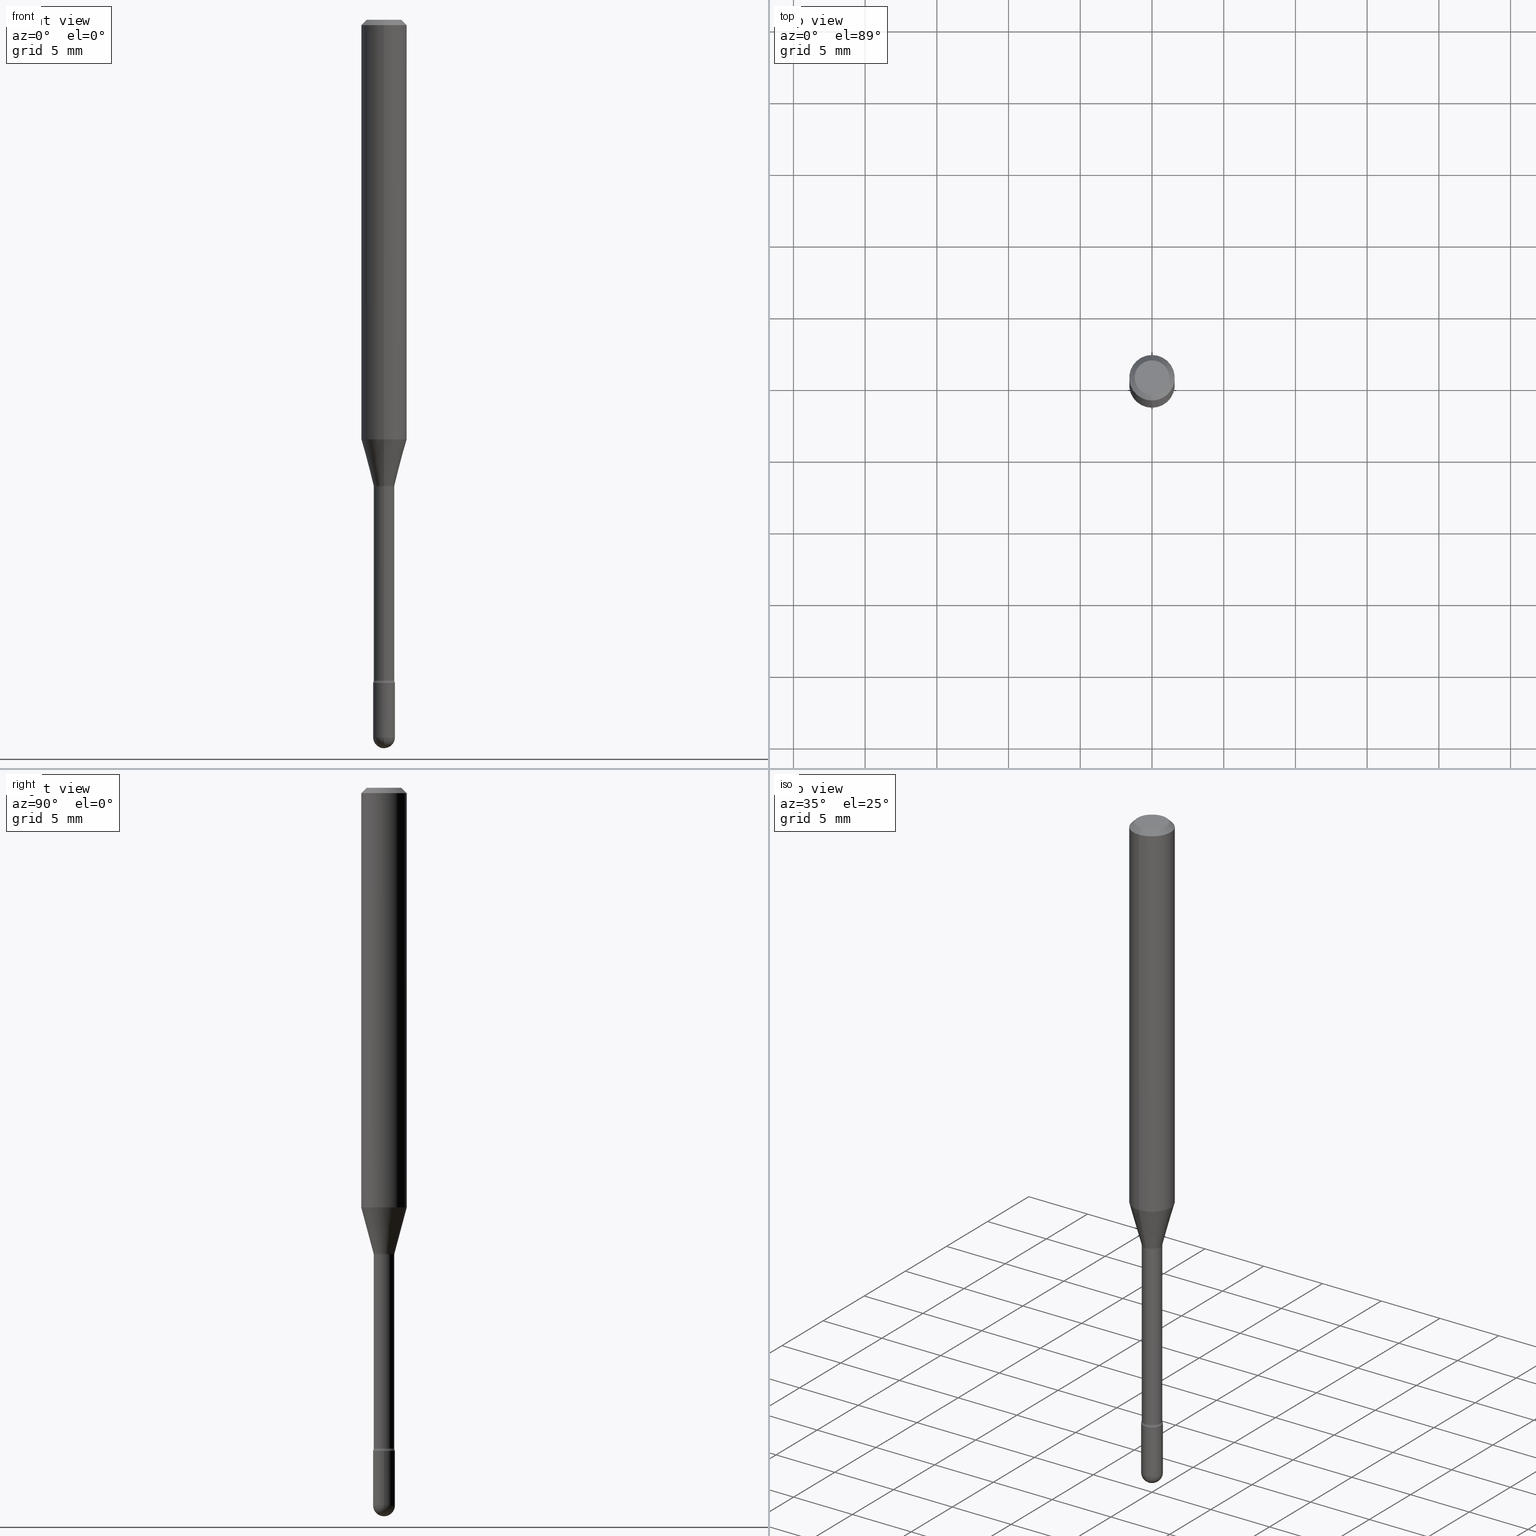
[diagram: canonical four-view strip — front | top / right | iso, engineering-drawing reading convention]
A machine part, canonical four-view strip (front | top / right | iso — engineering-drawing reading convention). The complete STEP part file that produces these views, byte-faithful:
ISO-10303-21;
HEADER;
FILE_DESCRIPTION (( 'STEP AP203' ),
    '1' );
FILE_NAME ('09808.STEP',
    '2024-04-10T01:38:13',
    ( '' ),
    ( '' ),
    'SwSTEP 2.0',
    'SolidWorks 2023',
    '' );
FILE_SCHEMA (( 'CONFIG_CONTROL_DESIGN' ));
ENDSEC;

DATA;
#1 = CARTESIAN_POINT ( 'NONE',  ( 3.135034256574997067E-29, -4.475984025182689019E-15, -1.281974787463810994 ) ) ;
#2 = DIRECTION ( 'NONE',  ( -6.982962677686266711E-15, -1.000000000000000000, 0.000000000000000000 ) ) ;
#3 = ADVANCED_FACE ( 'NONE', ( #61 ), #437, .T. ) ;
#4 = EDGE_CURVE ( 'NONE', #338, #497, #53, .T. ) ;
#5 = CIRCLE ( 'NONE', #69, 0.06250000000000000000 ) ;
#6 = EDGE_LOOP ( 'NONE', ( #266, #74, #245, #470, #261 ) ) ;
#7 = CIRCLE ( 'NONE', #134, 0.03000000000000000583 ) ;
#8 = APPLICATION_CONTEXT ( 'configuration controlled 3d designs of mechanical parts and assemblies' ) ;
#9 = DIRECTION ( 'NONE',  ( -2.445472631156169936E-29, 3.491475861266922095E-15, 1.000000000000000000 ) ) ;
#10 = UNCERTAINTY_MEASURE_WITH_UNIT (LENGTH_MEASURE( 1.000000000000000082E-05 ), #332, 'distance_accuracy_value', 'NONE');
#11 = DIRECTION ( 'NONE',  ( -6.982962677686265922E-15, -1.000000000000000000, 0.000000000000000000 ) ) ;
#12 = ORIENTED_EDGE ( 'NONE', *, *, #106, .T. ) ;
#13 = SPHERICAL_SURFACE ( 'NONE', #218, 0.02999999999999997807 ) ;
#14 = PERSON_AND_ORGANIZATION_ROLE ( 'classification_officer' ) ;
#15 = EDGE_CURVE ( 'NONE', #220, #75, #559, .T. ) ;
#16 = DIRECTION ( 'NONE',  ( -6.982962677686265922E-15, -1.000000000000000000, 4.370956789862821150E-15 ) ) ;
#17 = DATE_TIME_ROLE ( 'classification_date' ) ;
#18 = AXIS2_PLACEMENT_3D ( 'NONE', #376, #284, #240 ) ;
#19 = AXIS2_PLACEMENT_3D ( 'NONE', #215, #257, #467 ) ;
#20 = DIRECTION ( 'NONE',  ( -6.982962677686265133E-15, -1.000000000000000000, 0.000000000000000000 ) ) ;
#21 = DIRECTION ( 'NONE',  ( -1.000000000000000000, 7.105427357601001070E-15, -4.926315508542082329E-29 ) ) ;
#22 = DIRECTION ( 'NONE',  ( -4.851104656540964275E-15, -0.7071067811865500152, -0.7071067811865450192 ) ) ;
#23 = CARTESIAN_POINT ( 'NONE',  ( 2.003730514843928186E-16, 0.02819999999999552032, -1.281974787463810994 ) ) ;
#24 = CARTESIAN_POINT ( 'NONE',  ( -1.169113584055446105E-44, 1.669184350826100908E-30, 4.780733988912460139E-16 ) ) ;
#25 = AXIS2_PLACEMENT_3D ( 'NONE', #182, #273, #16 ) ;
#26 = APPROVAL_PERSON_ORGANIZATION ( #272, #490, #51 ) ;
#27 = DIRECTION ( 'NONE',  ( -2.445472631156169936E-29, 3.491475861266922095E-15, 1.000000000000000000 ) ) ;
#28 = ORIENTED_EDGE ( 'NONE', *, *, #4, .F. ) ;
#29 = ORIENTED_EDGE ( 'NONE', *, *, #167, .T. ) ;
#30 = DATE_TIME_ROLE ( 'creation_date' ) ;
#31 = ORIENTED_EDGE ( 'NONE', *, *, #291, .F. ) ;
#32 = DIRECTION ( 'NONE',  ( -2.445468806185136597E-29, 3.491481338843145583E-15, 1.000000000000000000 ) ) ;
#33 = AXIS2_PLACEMENT_3D ( 'NONE', #277, #447, #2 ) ;
#34 = ORIENTED_EDGE ( 'NONE', *, *, #564, .F. ) ;
#35 = APPROVAL_PERSON_ORGANIZATION ( #92, #483, #100 ) ;
#36 = DIRECTION ( 'NONE',  ( -2.445472631156169936E-29, 3.491475861266922095E-15, 1.000000000000000000 ) ) ;
#37 = ORIENTED_EDGE ( 'NONE', *, *, #278, .T. ) ;
#38 = FACE_OUTER_BOUND ( 'NONE', #377, .T. ) ;
#39 = MANIFOLD_SOLID_BREP ( 'Body-Move/Copy2[1]', #79 ) ;
#40 = ORIENTED_EDGE ( 'NONE', *, *, #106, .F. ) ;
#41 = PLANE ( 'NONE',  #133 ) ;
#42 = CIRCLE ( 'NONE', #121, 0.02820000000000009652 ) ;
#43 = CIRCLE ( 'NONE', #192, 0.04749999999999999362 ) ;
#44 = EDGE_LOOP ( 'NONE', ( #380, #439, #113, #360 ) ) ;
#45 = DIRECTION ( 'NONE',  ( -6.982962677686266711E-15, -1.000000000000000000, 3.491475861266922095E-15 ) ) ;
#46 = ORIENTED_EDGE ( 'NONE', *, *, #397, .T. ) ;
#47 = CARTESIAN_POINT ( 'NONE',  ( 4.450753227256948741E-29, -6.354496036694524637E-15, -1.820000000000000062 ) ) ;
#48 = EDGE_CURVE ( 'NONE', #81, #503, #524, .T. ) ;
#49 = EDGE_CURVE ( 'NONE', #486, #206, #357, .T. ) ;
#50 = DIRECTION ( 'NONE',  ( -6.982962677686265922E-15, -1.000000000000000000, 3.491475861266922489E-15 ) ) ;
#51 = APPROVAL_ROLE ( '' ) ;
#52 = CARTESIAN_POINT ( 'NONE',  ( 3.135029353058570194E-29, -4.475991047297303565E-15, -1.281974787463810994 ) ) ;
#53 = CIRCLE ( 'NONE', #18, 0.02999999999999999889 ) ;
#54 = VERTEX_POINT ( 'NONE', #163 ) ;
#55 = VECTOR ( 'NONE', #405, 39.37007874015748143 ) ;
#56 =( NAMED_UNIT ( * ) SI_UNIT ( $, .STERADIAN. ) SOLID_ANGLE_UNIT ( ) );
#57 = CARTESIAN_POINT ( 'NONE',  ( 0.000000000000000000, 0.000000000000000000, 0.000000000000000000 ) ) ;
#58 = COORDINATED_UNIVERSAL_TIME_OFFSET ( 5, 0, .BEHIND. ) ;
#59 = DIRECTION ( 'NONE',  ( -2.445472631156169936E-29, 3.491475861266922489E-15, 1.000000000000000000 ) ) ;
#60 = DIRECTION ( 'NONE',  ( -2.438088387897960049E-29, 3.491481338843145188E-15, 1.000000000000000000 ) ) ;
#61 = FACE_OUTER_BOUND ( 'NONE', #504, .T. ) ;
#62 = AXIS2_PLACEMENT_3D ( 'NONE', #52, #9, #45 ) ;
#63 = ADVANCED_FACE ( 'NONE', ( #297 ), #476, .T. ) ;
#64 = AXIS2_PLACEMENT_3D ( 'NONE', #359, #489, #11 ) ;
#65 = CIRCLE ( 'NONE', #288, 0.02819999999999999590 ) ;
#66 = APPLICATION_CONTEXT ( 'configuration controlled 3d designs of mechanical parts and assemblies' ) ;
#67 = DIRECTION ( 'NONE',  ( -2.445472631156169936E-29, 3.491475861266922095E-15, 1.000000000000000000 ) ) ;
#68 = FACE_OUTER_BOUND ( 'NONE', #442, .T. ) ;
#69 = AXIS2_PLACEMENT_3D ( 'NONE', #346, #472, #562 ) ;
#70 = ORIENTED_EDGE ( 'NONE', *, *, #401, .F. ) ;
#71 = CARTESIAN_POINT ( 'NONE',  ( 3.069544618484080644E-16, 0.04319999999999374340, -1.812875394747777813 ) ) ;
#72 = ORIENTED_EDGE ( 'NONE', *, *, #452, .F. ) ;
#73 = ADVANCED_FACE ( 'NONE', ( #424 ), #328, .F. ) ;
#74 = ORIENTED_EDGE ( 'NONE', *, *, #540, .T. ) ;
#75 = VERTEX_POINT ( 'NONE', #23 ) ;
#76 = CARTESIAN_POINT ( 'NONE',  ( -4.364351673553916201E-16, -0.06250000000000000000, 6.962906402204286449E-16 ) ) ;
#77 = DIRECTION ( 'NONE',  ( 6.982962677686265922E-15, 1.000000000000000000, -3.491475861266922489E-15 ) ) ;
#78 = CC_DESIGN_DATE_AND_TIME_ASSIGNMENT ( #493, #17, ( #105 ) ) ;
#79 = CLOSED_SHELL ( 'NONE', ( #260, #519, #179, #330, #63 ) ) ;
#80 = AXIS2_PLACEMENT_3D ( 'NONE', #505, #388, #294 ) ;
#81 = VERTEX_POINT ( 'NONE', #198 ) ;
#82 = EDGE_CURVE ( 'NONE', #548, #406, #336, .T. ) ;
#83 = EDGE_CURVE ( 'NONE', #220, #210, #166, .T. ) ;
#84 = ORIENTED_EDGE ( 'NONE', *, *, #397, .F. ) ;
#85 = DIRECTION ( 'NONE',  ( -2.445468806185136597E-29, 3.491481338843145583E-15, 1.000000000000000000 ) ) ;
#86 = ORIENTED_EDGE ( 'NONE', *, *, #452, .T. ) ;
#87 = AXIS2_PLACEMENT_3D ( 'NONE', #518, #563, #337 ) ;
#88 = ORIENTED_EDGE ( 'NONE', *, *, #82, .T. ) ;
#89 = LINE ( 'NONE', #136, #309 ) ;
#90 = APPROVAL_DATE_TIME ( #314, #319 ) ;
#91 = DIRECTION ( 'NONE',  ( -6.982962677686263555E-15, -1.000000000000000000, 0.000000000000000000 ) ) ;
#92 = PERSON_AND_ORGANIZATION ( #544, #301 ) ;
#93 = CARTESIAN_POINT ( 'NONE',  ( -1.969195475107530228E-16, -0.02820000000000004794, 5.765330181789734406E-16 ) ) ;
#94 = TOROIDAL_SURFACE ( 'NONE', #62, 0.04319999999999998841, 0.01500000000000001506 ) ;
#95 = DIMENSIONAL_EXPONENTS ( 1.000000000000000000, 0.000000000000000000, 0.000000000000000000, 0.000000000000000000, 0.000000000000000000, 0.000000000000000000, 0.000000000000000000 ) ;
#96 = AXIS2_PLACEMENT_3D ( 'NONE', #148, #500, #331 ) ;
#97 = DIRECTION ( 'NONE',  ( -2.445472631156169936E-29, 3.491475861266922489E-15, 1.000000000000000000 ) ) ;
#98 = ADVANCED_FACE ( 'NONE', ( #343 ), #122, .T. ) ;
#99 = CARTESIAN_POINT ( 'NONE',  ( 2.023580671322488949E-45, -2.889075548149930338E-31, -8.274729225641604290E-17 ) ) ;
#100 = APPROVAL_ROLE ( '' ) ;
#101 = CARTESIAN_POINT ( 'NONE',  ( 4.433330227356255357E-29, -6.329620610409766284E-15, -1.812875394747777591 ) ) ;
#102 = LINE ( 'NONE', #280, #444 ) ;
#103 = EDGE_CURVE ( 'NONE', #406, #548, #5, .T. ) ;
#104 = AXIS2_PLACEMENT_3D ( 'NONE', #371, #541, #131 ) ;
#105 = SECURITY_CLASSIFICATION ( '', '', #440 ) ;
#106 = EDGE_CURVE ( 'NONE', #468, #176, #42, .T. ) ;
#107 = FACE_OUTER_BOUND ( 'NONE', #211, .T. ) ;
#108 = DIRECTION ( 'NONE',  ( 1.000000000000000000, -7.105427357601001070E-15, 4.926315441461120497E-29 ) ) ;
#109 = CARTESIAN_POINT ( 'NONE',  ( 2.817161623775705020E-29, -4.022147572369319801E-15, -1.151990657300387744 ) ) ;
#110 = ORIENTED_EDGE ( 'NONE', *, *, #49, .F. ) ;
#111 = PERSON_AND_ORGANIZATION ( #544, #301 ) ;
#112 = ADVANCED_FACE ( 'NONE', ( #292 ), #164, .T. ) ;
#113 = ORIENTED_EDGE ( 'NONE', *, *, #128, .T. ) ;
#114 = CIRCLE ( 'NONE', #132, 0.02819999999999999590 ) ;
#115 = CONICAL_SURFACE ( 'NONE', #87, 0.06250000000000000000, 0.7853981633974483900 ) ;
#116 = ORIENTED_EDGE ( 'NONE', *, *, #540, .F. ) ;
#117 = CARTESIAN_POINT ( 'NONE',  ( 4.817573548184719118E-29, -6.878218237520997007E-15, -1.969999999999999973 ) ) ;
#118 = ORIENTED_EDGE ( 'NONE', *, *, #474, .F. ) ;
#119 = DIRECTION ( 'NONE',  ( -6.982962677686265922E-15, -1.000000000000000000, 3.491475861266921306E-15 ) ) ;
#120 = CARTESIAN_POINT ( 'NONE',  ( -0.03000000000000000583, 2.131628207280300972E-16, -1.475680527076471882E-30 ) ) ;
#121 = AXIS2_PLACEMENT_3D ( 'NONE', #214, #342, #394 ) ;
#122 = CYLINDRICAL_SURFACE ( 'NONE', #408, 0.06250000000000000000 ) ;
#123 = DESIGN_CONTEXT ( 'detailed design', #66, 'design' ) ;
#124 = AXIS2_PLACEMENT_3D ( 'NONE', #195, #404, #146 ) ;
#125 = DIRECTION ( 'NONE',  ( -2.445468806185136877E-29, 3.491481338843145188E-15, 1.000000000000000000 ) ) ;
#126 = CARTESIAN_POINT ( 'NONE',  ( 2.094888803306324684E-16, 0.02999999999999364286, -1.820000000000000062 ) ) ;
#127 = ORIENTED_EDGE ( 'NONE', *, *, #103, .T. ) ;
#128 = EDGE_CURVE ( 'NONE', #506, #548, #177, .T. ) ;
#129 = EDGE_LOOP ( 'NONE', ( #28, #557 ) ) ;
#130 = APPROVAL_STATUS ( 'not_yet_approved' ) ;
#131 = DIRECTION ( 'NONE',  ( -6.982962677686265922E-15, -1.000000000000000000, 3.483106191921935554E-15 ) ) ;
#132 = AXIS2_PLACEMENT_3D ( 'NONE', #1, #219, #181 ) ;
#133 = AXIS2_PLACEMENT_3D ( 'NONE', #339, #178, #77 ) ;
#134 = AXIS2_PLACEMENT_3D ( 'NONE', #152, #191, #496 ) ;
#135 = DIRECTION ( 'NONE',  ( -2.445472631156169375E-29, 3.491475861266922489E-15, 1.000000000000000000 ) ) ;
#136 = CARTESIAN_POINT ( 'NONE',  ( 0.03000000000000000583, -2.094888803305880457E-16, 1.462853032738781053E-30 ) ) ;
#137 =( LENGTH_UNIT ( ) NAMED_UNIT ( * ) SI_UNIT ( $, .METRE. ) );
#138 = COORDINATED_UNIVERSAL_TIME_OFFSET ( 5, 0, .BEHIND. ) ;
#139 = ORIENTED_EDGE ( 'NONE', *, *, #183, .F. ) ;
#140 = ADVANCED_FACE ( 'NONE', ( #482 ), #281, .F. ) ;
#141 = EDGE_CURVE ( 'NONE', #503, #513, #425, .T. ) ;
#142 = AXIS2_PLACEMENT_3D ( 'NONE', #311, #231, #435 ) ;
#143 = COORDINATED_UNIVERSAL_TIME_OFFSET ( 5, 0, .BEHIND. ) ;
#144 = CARTESIAN_POINT ( 'NONE',  ( -0.03000000000000000583, -6.403194316379730971E-15, -1.969999999999999973 ) ) ;
#145 = DATE_AND_TIME ( #536, #184 ) ;
#146 = DIRECTION ( 'NONE',  ( 1.000000000000000000, -6.982962677686266711E-15, 0.000000000000000000 ) ) ;
#147 = CC_DESIGN_PERSON_AND_ORGANIZATION_ASSIGNMENT ( #224, #316, ( #410 ) ) ;
#149 = EDGE_CURVE ( 'NONE', #176, #264, #315, .T. ) ;
#148 = CARTESIAN_POINT ( 'NONE',  ( 4.433330227356255357E-29, -6.329620610409766284E-15, -1.812875394747777591 ) ) ;
#150 = CALENDAR_DATE ( 2024, 9, 4 ) ;
#151 = DIRECTION ( 'NONE',  ( -6.982962677686266711E-15, -1.000000000000000000, 3.491475861266922095E-15 ) ) ;
#152 = CARTESIAN_POINT ( 'NONE',  ( 4.817573548184719118E-29, -6.878218237520997007E-15, -1.969999999999999973 ) ) ;
#153 = CIRCLE ( 'NONE', #25, 0.06250000000000000000 ) ;
#154 =( GEOMETRIC_REPRESENTATION_CONTEXT ( 3 ) GLOBAL_UNCERTAINTY_ASSIGNED_CONTEXT ( ( #10 ) ) GLOBAL_UNIT_ASSIGNED_CONTEXT ( ( #332, #156, #56 ) ) REPRESENTATION_CONTEXT ( 'NONE', 'WORKASPACE' ) );
#155 = EDGE_CURVE ( 'NONE', #506, #210, #153, .T. ) ;
#156 =( NAMED_UNIT ( * ) PLANE_ANGLE_UNIT ( ) SI_UNIT ( $, .RADIAN. ) );
#157 = ORIENTED_EDGE ( 'NONE', *, *, #363, .F. ) ;
#158 = VERTEX_POINT ( 'NONE', #223 ) ;
#159 = SPHERICAL_SURFACE ( 'NONE', #438, 0.02999999999999997807 ) ;
#160 = VECTOR ( 'NONE', #511, 39.37007874015748143 ) ;
#161 = AXIS2_PLACEMENT_3D ( 'NONE', #117, #32, #262 ) ;
#162 = EDGE_CURVE ( 'NONE', #54, #406, #308, .T. ) ;
#163 = CARTESIAN_POINT ( 'NONE',  ( 3.840629472727447874E-16, 0.04749999999999999362, -2.485923956665948360E-16 ) ) ;
#164 = CYLINDRICAL_SURFACE ( 'NONE', #393, 0.06250000000000000000 ) ;
#165 = FACE_OUTER_BOUND ( 'NONE', #246, .T. ) ;
#166 = LINE ( 'NONE', #556, #515 ) ;
#167 = EDGE_CURVE ( 'NONE', #176, #338, #237, .T. ) ;
#168 = ORIENTED_EDGE ( 'NONE', *, *, #82, .F. ) ;
#169 = FACE_OUTER_BOUND ( 'NONE', #383, .T. ) ;
#170 = APPLICATION_PROTOCOL_DEFINITION ( 'international standard', 'config_control_design', 1994, #66 ) ;
#171 = DIRECTION ( 'NONE',  ( 1.839019923739598738E-15, 0.2588190451025247363, 0.9659258262890673130 ) ) ;
#172 = ORIENTED_EDGE ( 'NONE', *, *, #167, .F. ) ;
#173 = DIRECTION ( 'NONE',  ( -6.982962677686265922E-15, -1.000000000000000000, 3.491475861266921306E-15 ) ) ;
#174 = AXIS2_PLACEMENT_3D ( 'NONE', #348, #520, #91 ) ;
#175 = CIRCLE ( 'NONE', #458, 0.02999999999999999889 ) ;
#176 = VERTEX_POINT ( 'NONE', #356 ) ;
#177 = LINE ( 'NONE', #76, #160 ) ;
#178 = DIRECTION ( 'NONE',  ( 2.445472631156169375E-29, -3.491475861266922489E-15, -1.000000000000000000 ) ) ;
#179 = ADVANCED_FACE ( 'NONE', ( #491 ), #443, .T. ) ;
#180 = ORIENTED_EDGE ( 'NONE', *, *, #15, .F. ) ;
#181 = DIRECTION ( 'NONE',  ( -6.982962677686265922E-15, -1.000000000000000000, 0.000000000000000000 ) ) ;
#182 = CARTESIAN_POINT ( 'NONE',  ( 2.817161623775705020E-29, -4.022147572369319801E-15, -1.151990657300387744 ) ) ;
#183 = EDGE_CURVE ( 'NONE', #468, #75, #527, .T. ) ;
#184 = LOCAL_TIME ( 21, 38, 13.00000000000000000, #143 ) ;
#185 = SHAPE_DEFINITION_REPRESENTATION ( #327, #317 ) ;
#186 = CARTESIAN_POINT ( 'NONE',  ( 4.364351673553919652E-16, 0.06249999999999995143, -0.01500000000000030129 ) ) ;
#187 = EDGE_CURVE ( 'NONE', #378, #506, #399, .T. ) ;
#188 = DIRECTION ( 'NONE',  ( -6.982962677686266711E-15, -1.000000000000000000, 3.491475861266922884E-15 ) ) ;
#189 = CARTESIAN_POINT ( 'NONE',  ( 4.440892098500625669E-16, 0.06250000000000000000, 2.598561575620634323E-16 ) ) ;
#190 = CARTESIAN_POINT ( 'NONE',  ( -0.02999999999999999889, -6.403194316379730971E-15, -1.820000000000000062 ) ) ;
#191 = DIRECTION ( 'NONE',  ( -2.445468806185136597E-29, 3.491481338843145583E-15, 1.000000000000000000 ) ) ;
#192 = AXIS2_PLACEMENT_3D ( 'NONE', #99, #27, #188 ) ;
#193 = DATE_AND_TIME ( #216, #466 ) ;
#194 = EDGE_CURVE ( 'NONE', #513, #486, #89, .T. ) ;
#195 = CARTESIAN_POINT ( 'NONE',  ( 4.817573548184719118E-29, -6.878218237520997007E-15, -1.969999999999999973 ) ) ;
#196 = CARTESIAN_POINT ( 'NONE',  ( 3.668208946734274889E-31, -5.237213791900411517E-17, -0.01500000000000008271 ) ) ;
#197 = APPROVAL_DATE_TIME ( #145, #490 ) ;
#198 = CARTESIAN_POINT ( 'NONE',  ( 4.892220361804041996E-29, -6.981125707487570201E-15, -2.000000000000000000 ) ) ;
#199 = CC_DESIGN_PERSON_AND_ORGANIZATION_ASSIGNMENT ( #279, #14, ( #105 ) ) ;
#200 = DIRECTION ( 'NONE',  ( -6.982962677686265922E-15, -1.000000000000000000, 3.491475861266924067E-15 ) ) ;
#201 = AXIS2_PLACEMENT_3D ( 'NONE', #411, #236, #419 ) ;
#202 = AXIS2_PLACEMENT_3D ( 'NONE', #296, #386, #391 ) ;
#203 = CARTESIAN_POINT ( 'NONE',  ( 4.817573548184719118E-29, -6.878218237520997007E-15, -1.969999999999999973 ) ) ;
#204 = ORIENTED_EDGE ( 'NONE', *, *, #83, .F. ) ;
#205 = ORIENTED_EDGE ( 'NONE', *, *, #128, .F. ) ;
#206 = VERTEX_POINT ( 'NONE', #190 ) ;
#207 = AXIS2_PLACEMENT_3D ( 'NONE', #126, #135, #50 ) ;
#208 = LOCAL_TIME ( 21, 38, 13.00000000000000000, #138 ) ;
#209 = CC_DESIGN_PERSON_AND_ORGANIZATION_ASSIGNMENT ( #238, #409, ( #488 ) ) ;
#210 = VERTEX_POINT ( 'NONE', #313 ) ;
#211 = EDGE_LOOP ( 'NONE', ( #379, #254, #84, #247 ) ) ;
#212 = DIRECTION ( 'NONE',  ( -2.445472631156169936E-29, 3.491475861266922095E-15, 1.000000000000000000 ) ) ;
#213 = EDGE_LOOP ( 'NONE', ( #180, #34, #37, #46 ) ) ;
#214 = CARTESIAN_POINT ( 'NONE',  ( 4.433337161552127439E-29, -6.329610680246607971E-15, -1.812875394747777591 ) ) ;
#215 = CARTESIAN_POINT ( 'NONE',  ( 3.125540233206694433E-29, -4.462429118456514337E-15, -1.278092501787273072 ) ) ;
#216 = CALENDAR_DATE ( 2024, 9, 4 ) ;
#217 = AXIS2_PLACEMENT_3D ( 'NONE', #203, #21, #530 ) ;
#218 = AXIS2_PLACEMENT_3D ( 'NONE', #368, #537, #322 ) ;
#219 = DIRECTION ( 'NONE',  ( -2.445472631156169936E-29, 3.491475861266922095E-15, 1.000000000000000000 ) ) ;
#220 = VERTEX_POINT ( 'NONE', #364 ) ;
#221 = DIRECTION ( 'NONE',  ( -2.445468806185136597E-29, 3.491481338843145583E-15, 1.000000000000000000 ) ) ;
#222 = APPROVAL_ROLE ( '' ) ;
#223 = CARTESIAN_POINT ( 'NONE',  ( -3.773273898774340269E-16, -0.04749999999999999362, 8.309781115376275020E-17 ) ) ;
#224 = PERSON_AND_ORGANIZATION ( #544, #301 ) ;
#225 = CONICAL_SURFACE ( 'NONE', #142, 0.02871111260566398468, 0.2617993877991500740 ) ;
#226 = VECTOR ( 'NONE', #125, 39.37007874015748143 ) ;
#227 = PLANE ( 'NONE',  #207 ) ;
#228 = ORIENTED_EDGE ( 'NONE', *, *, #149, .T. ) ;
#229 = DIRECTION ( 'NONE',  ( 1.000000000000000000, -6.982962677686265922E-15, 4.876176775795935793E-29 ) ) ;
#230 = MANIFOLD_SOLID_BREP ( 'Body-Move/Copy2[2]', #320 ) ;
#231 = DIRECTION ( 'NONE',  ( -2.445472631156169936E-29, 3.491475861266922095E-15, 1.000000000000000000 ) ) ;
#232 = APPROVAL_DATE_TIME ( #498, #483 ) ;
#233 = CARTESIAN_POINT ( 'NONE',  ( -2.004886277601680082E-16, -0.02871111260566844292, -1.278092501787273072 ) ) ;
#234 = CARTESIAN_POINT ( 'NONE',  ( 4.440892098500909166E-16, 0.06249999999999995143, -0.01500000000000030129 ) ) ;
#235 = CARTESIAN_POINT ( 'NONE',  ( -2.004886277601680082E-16, -0.02871111260566844292, -1.278092501787273072 ) ) ;
#236 = DIRECTION ( 'NONE',  ( -2.445468806185136597E-29, 3.491481338843145583E-15, 1.000000000000000000 ) ) ;
#237 = CIRCLE ( 'NONE', #33, 0.01499999999999996822 ) ;
#238 = PERSON_AND_ORGANIZATION ( #544, #301 ) ;
#239 = AXIS2_PLACEMENT_3D ( 'NONE', #109, #367, #461 ) ;
#240 = DIRECTION ( 'NONE',  ( -6.982962677686265922E-15, -1.000000000000000000, 0.000000000000000000 ) ) ;
#241 = CARTESIAN_POINT ( 'NONE',  ( 4.450753227256948741E-29, -6.354496036694524637E-15, -1.820000000000000062 ) ) ;
#242 = LINE ( 'NONE', #120, #226 ) ;
#243 = AXIS2_PLACEMENT_3D ( 'NONE', #57, #221, #529 ) ;
#244 = TOROIDAL_SURFACE ( 'NONE', #96, 0.04320000000000006474, 0.01499999999999997169 ) ;
#245 = ORIENTED_EDGE ( 'NONE', *, *, #141, .T. ) ;
#246 = EDGE_LOOP ( 'NONE', ( #340, #86 ) ) ;
#247 = ORIENTED_EDGE ( 'NONE', *, *, #149, .F. ) ;
#248 = ORIENTED_EDGE ( 'NONE', *, *, #253, .F. ) ;
#249 = ORIENTED_EDGE ( 'NONE', *, *, #49, .T. ) ;
#250 = ADVANCED_FACE ( 'NONE', ( #267 ), #94, .F. ) ;
#251 = CARTESIAN_POINT ( 'NONE',  ( -1.169113584055446105E-44, 1.669184350826100908E-30, 4.780733988912460139E-16 ) ) ;
#252 = DIRECTION ( 'NONE',  ( -1.000000000000000000, 6.982962677686265922E-15, -4.883557194083112340E-29 ) ) ;
#253 = EDGE_CURVE ( 'NONE', #176, #468, #412, .T. ) ;
#254 = ORIENTED_EDGE ( 'NONE', *, *, #183, .T. ) ;
#255 = AXIS2_PLACEMENT_3D ( 'NONE', #325, #108, #456 ) ;
#256 = CARTESIAN_POINT ( 'NONE',  ( 4.817573548184719118E-29, -6.878218237520997007E-15, -1.969999999999999973 ) ) ;
#257 = DIRECTION ( 'NONE',  ( -2.445472631156169936E-29, 3.491475861266922095E-15, 1.000000000000000000 ) ) ;
#258 = APPROVAL_PERSON_ORGANIZATION ( #418, #319, #222 ) ;
#259 = ORIENTED_EDGE ( 'NONE', *, *, #162, .F. ) ;
#260 = ADVANCED_FACE ( 'NONE', ( #354 ), #263, .T. ) ;
#261 = ORIENTED_EDGE ( 'NONE', *, *, #471, .F. ) ;
#262 = DIRECTION ( 'NONE',  ( 1.000000000000000000, -6.982962677686266711E-15, 0.000000000000000000 ) ) ;
#263 = CYLINDRICAL_SURFACE ( 'NONE', #243, 0.03000000000000000583 ) ;
#264 = VERTEX_POINT ( 'NONE', #492 ) ;
#265 = CIRCLE ( 'NONE', #161, 0.03000000000000000583 ) ;
#266 = ORIENTED_EDGE ( 'NONE', *, *, #454, .F. ) ;
#267 = FACE_OUTER_BOUND ( 'NONE', #415, .T. ) ;
#268 = ADVANCED_FACE ( 'NONE', ( #306 ), #225, .T. ) ;
#269 = CARTESIAN_POINT ( 'NONE',  ( 2.023580671322488949E-45, -2.889075548149930338E-31, -8.274729225641604290E-17 ) ) ;
#270 = CARTESIAN_POINT ( 'NONE',  ( 4.450760188704229109E-29, -6.354486067505798087E-15, -1.820000000000000062 ) ) ;
#271 = ORIENTED_EDGE ( 'NONE', *, *, #441, .F. ) ;
#272 = PERSON_AND_ORGANIZATION ( #544, #301 ) ;
#273 = DIRECTION ( 'NONE',  ( -2.445472631156169936E-29, 3.491475861266922095E-15, 1.000000000000000000 ) ) ;
#274 = VECTOR ( 'NONE', #97, 39.37007874015748143 ) ;
#275 = CC_DESIGN_APPROVAL ( #319, ( #410 ) ) ;
#276 = ORIENTED_EDGE ( 'NONE', *, *, #434, .F. ) ;
#277 = CARTESIAN_POINT ( 'NONE',  ( -3.016639876760028324E-16, -0.04320000000000639301, -1.812875394747777147 ) ) ;
#278 = EDGE_CURVE ( 'NONE', #378, #264, #542, .T. ) ;
#279 = PERSON_AND_ORGANIZATION ( #544, #301 ) ;
#280 = CARTESIAN_POINT ( 'NONE',  ( -4.287811248607203282E-16, -0.06250000000000005551, -0.01499999999999986587 ) ) ;
#281 = TOROIDAL_SURFACE ( 'NONE', #455, 0.04319999999999998841, 0.01500000000000001506 ) ;
#282 = DIRECTION ( 'NONE',  ( 1.000000000000000000, -7.105427357601001070E-15, 4.926315441461120497E-29 ) ) ;
#283 = CYLINDRICAL_SURFACE ( 'NONE', #374, 0.02820000000000004794 ) ;
#284 = DIRECTION ( 'NONE',  ( -2.445472631156169936E-29, 3.491475861266922095E-15, 1.000000000000000000 ) ) ;
#285 = EDGE_CURVE ( 'NONE', #497, #338, #494, .T. ) ;
#286 = VERTEX_POINT ( 'NONE', #398 ) ;
#287 = EDGE_LOOP ( 'NONE', ( #392, #481, #110, #341, #448 ) ) ;
#288 = AXIS2_PLACEMENT_3D ( 'NONE', #535, #402, #531 ) ;
#289 = DIRECTION ( 'NONE',  ( -2.445472631156169936E-29, 3.491475861266922095E-15, 1.000000000000000000 ) ) ;
#290 = ORIENTED_EDGE ( 'NONE', *, *, #291, .T. ) ;
#291 = EDGE_CURVE ( 'NONE', #75, #264, #114, .T. ) ;
#292 = FACE_OUTER_BOUND ( 'NONE', #302, .T. ) ;
#293 = CYLINDRICAL_SURFACE ( 'NONE', #543, 0.02820000000000004794 ) ;
#294 = DIRECTION ( 'NONE',  ( 1.000000000000000000, 0.000000000000000000, 0.000000000000000000 ) ) ;
#295 = ORIENTED_EDGE ( 'NONE', *, *, #4, .T. ) ;
#296 = CARTESIAN_POINT ( 'NONE',  ( 3.125540233206694433E-29, -4.462429118456514337E-15, -1.278092501787273072 ) ) ;
#297 = FACE_OUTER_BOUND ( 'NONE', #6, .T. ) ;
#298 = EDGE_LOOP ( 'NONE', ( #204, #344, #561, #484 ) ) ;
#299 = CARTESIAN_POINT ( 'NONE',  ( -1.169113584055446105E-44, 1.669184350826100908E-30, 4.780733988912460139E-16 ) ) ;
#300 = ADVANCED_FACE ( 'NONE', ( #565 ), #227, .F. ) ;
#301 = ORGANIZATION ( 'UNSPECIFIED', 'UNSPECIFIED', '' ) ;
#302 = EDGE_LOOP ( 'NONE', ( #423, #355, #168, #205 ) ) ;
#303 = ADVANCED_FACE ( 'NONE', ( #304 ), #552, .T. ) ;
#304 = FACE_OUTER_BOUND ( 'NONE', #430, .T. ) ;
#305 = ORIENTED_EDGE ( 'NONE', *, *, #429, .F. ) ;
#306 = FACE_OUTER_BOUND ( 'NONE', #298, .T. ) ;
#307 = ORIENTED_EDGE ( 'NONE', *, *, #155, .F. ) ;
#308 = LINE ( 'NONE', #186, #384 ) ;
#309 = VECTOR ( 'NONE', #403, 39.37007874015748143 ) ;
#310 = CC_DESIGN_PERSON_AND_ORGANIZATION_ASSIGNMENT ( #538, #407, ( #488 ) ) ;
#311 = CARTESIAN_POINT ( 'NONE',  ( 3.125540233206694433E-29, -4.462429118456514337E-15, -1.278092501787273072 ) ) ;
#312 = EDGE_CURVE ( 'NONE', #513, #286, #7, .T. ) ;
#313 = CARTESIAN_POINT ( 'NONE',  ( 4.440892098500905221E-16, 0.06249999999999596156, -1.151990657300388188 ) ) ;
#314 = DATE_AND_TIME ( #362, #208 ) ;
#315 = LINE ( 'NONE', #93, #274 ) ;
#316 = PERSON_AND_ORGANIZATION_ROLE ( 'creator' ) ;
#317 = ADVANCED_BREP_SHAPE_REPRESENTATION ( '09808', ( #39, #230, #80 ), #154 ) ;
#318 = DIRECTION ( 'NONE',  ( 4.937700262164548042E-15, 0.7071067811865451302, -0.7071067811865499042 ) ) ;
#319 = APPROVAL ( #130, 'UNSPECIFIED' ) ;
#320 = CLOSED_SHELL ( 'NONE', ( #250, #353, #334, #3, #112, #303, #268, #98, #528, #546, #300, #73, #510, #140 ) ) ;
#321 = CIRCLE ( 'NONE', #413, 0.04749999999999999362 ) ;
#322 = DIRECTION ( 'NONE',  ( 6.982962677686265922E-15, 1.000000000000000000, 0.000000000000000000 ) ) ;
#323 = CARTESIAN_POINT ( 'NONE',  ( 2.003730514843485684E-16, 0.02820000000000004794, 3.796137796035186859E-16 ) ) ;
#324 = CARTESIAN_POINT ( 'NONE',  ( -2.094888803305434011E-16, -0.03000000000000633410, -1.819999999999999618 ) ) ;
#325 = CARTESIAN_POINT ( 'NONE',  ( 3.069544618483945059E-16, 0.04319999999999551976, -1.281974787463811216 ) ) ;
#326 = CC_DESIGN_PERSON_AND_ORGANIZATION_ASSIGNMENT ( #111, #463, ( #417 ) ) ;
#327 = PRODUCT_DEFINITION_SHAPE ( 'NONE', 'NONE',  #410 ) ;
#328 = TOROIDAL_SURFACE ( 'NONE', #365, 0.04320000000000006474, 0.01499999999999997169 ) ;
#329 = CC_DESIGN_APPROVAL ( #490, ( #105 ) ) ;
#330 = ADVANCED_FACE ( 'NONE', ( #68 ), #13, .T. ) ;
#331 = DIRECTION ( 'NONE',  ( -6.982962677686266711E-15, -1.000000000000000000, 3.491475861266922095E-15 ) ) ;
#332 =( CONVERSION_BASED_UNIT ( 'INCH', #432 ) LENGTH_UNIT ( ) NAMED_UNIT ( #95 ) );
#333 = ORIENTED_EDGE ( 'NONE', *, *, #48, .F. ) ;
#334 = ADVANCED_FACE ( 'NONE', ( #501 ), #244, .F. ) ;
#335 = ORIENTED_EDGE ( 'NONE', *, *, #363, .T. ) ;
#336 = CIRCLE ( 'NONE', #104, 0.06250000000000000000 ) ;
#337 = DIRECTION ( 'NONE',  ( 6.982962677686265922E-15, 1.000000000000000000, -3.483106191921935554E-15 ) ) ;
#338 = VERTEX_POINT ( 'NONE', #324 ) ;
#339 = CARTESIAN_POINT ( 'NONE',  ( 3.316907271900976096E-16, 0.04749999999999999362, 3.181794990723627253E-17 ) ) ;
#340 = ORIENTED_EDGE ( 'NONE', *, *, #401, .T. ) ;
#341 = ORIENTED_EDGE ( 'NONE', *, *, #194, .F. ) ;
#342 = DIRECTION ( 'NONE',  ( -2.445472631156169936E-29, 3.491475861266922095E-15, 1.000000000000000000 ) ) ;
#343 = FACE_OUTER_BOUND ( 'NONE', #44, .T. ) ;
#344 = ORIENTED_EDGE ( 'NONE', *, *, #474, .T. ) ;
#345 = AXIS2_PLACEMENT_3D ( 'NONE', #47, #60, #229 ) ;
#346 = CARTESIAN_POINT ( 'NONE',  ( 3.668208946734274889E-31, -5.237213791900411517E-17, -0.01500000000000008271 ) ) ;
#347 = COORDINATED_UNIVERSAL_TIME_OFFSET ( 5, 0, .BEHIND. ) ;
#348 = CARTESIAN_POINT ( 'NONE',  ( -3.016639876760152570E-16, -0.04320000000000446400, -1.281974787463810772 ) ) ;
#349 = ORIENTED_EDGE ( 'NONE', *, *, #15, .T. ) ;
#350 = CARTESIAN_POINT ( 'NONE',  ( -4.364351673553912750E-16, -0.06250000000000005551, -0.01499999999999986587 ) ) ;
#351 = ORIENTED_EDGE ( 'NONE', *, *, #285, .T. ) ;
#352 = EDGE_CURVE ( 'NONE', #210, #406, #375, .T. ) ;
#353 = ADVANCED_FACE ( 'NONE', ( #107 ), #283, .T. ) ;
#354 = FACE_OUTER_BOUND ( 'NONE', #287, .T. ) ;
#355 = ORIENTED_EDGE ( 'NONE', *, *, #352, .T. ) ;
#356 = CARTESIAN_POINT ( 'NONE',  ( -1.969195475107090191E-16, -0.02820000000000642479, -1.812875394747777591 ) ) ;
#357 = CIRCLE ( 'NONE', #373, 0.02999999999999999889 ) ;
#358 = CC_DESIGN_APPROVAL ( #483, ( #488 ) ) ;
#359 = CARTESIAN_POINT ( 'NONE',  ( 4.433337161552127439E-29, -6.329610680246607971E-15, -1.812875394747777591 ) ) ;
#360 = ORIENTED_EDGE ( 'NONE', *, *, #103, .F. ) ;
#361 = DIRECTION ( 'NONE',  ( -1.807323732225328562E-15, -0.2588190451025179639, 0.9659258262890690894 ) ) ;
#362 = CALENDAR_DATE ( 2024, 9, 4 ) ;
#363 = EDGE_CURVE ( 'NONE', #81, #286, #534, .T. ) ;
#364 = CARTESIAN_POINT ( 'NONE',  ( 3.240469674127849816E-16, 0.02871111260565952297, -1.278092501787273072 ) ) ;
#365 = AXIS2_PLACEMENT_3D ( 'NONE', #101, #453, #151 ) ;
#366 = CIRCLE ( 'NONE', #507, 0.01499999999999996822 ) ;
#367 = DIRECTION ( 'NONE',  ( -2.445472631156169936E-29, 3.491475861266922095E-15, 1.000000000000000000 ) ) ;
#368 = CARTESIAN_POINT ( 'NONE',  ( 4.817573548184719118E-29, -6.878218237520997007E-15, -1.969999999999999973 ) ) ;
#369 = DIRECTION ( 'NONE',  ( 2.445472631156169936E-29, -3.491475861266922095E-15, -1.000000000000000000 ) ) ;
#370 = EDGE_CURVE ( 'NONE', #210, #506, #526, .T. ) ;
#371 = CARTESIAN_POINT ( 'NONE',  ( 3.668208946734274889E-31, -5.237213791900411517E-17, -0.01500000000000008271 ) ) ;
#372 = DIRECTION ( 'NONE',  ( 7.105427357601001859E-15, 1.000000000000000000, 0.000000000000000000 ) ) ;
#373 = AXIS2_PLACEMENT_3D ( 'NONE', #241, #512, #539 ) ;
#374 = AXIS2_PLACEMENT_3D ( 'NONE', #24, #499, #200 ) ;
#375 = LINE ( 'NONE', #189, #55 ) ;
#376 = CARTESIAN_POINT ( 'NONE',  ( 4.450760188704229109E-29, -6.354486067505798087E-15, -1.820000000000000062 ) ) ;
#377 = EDGE_LOOP ( 'NONE', ( #157, #436, #116, #305 ) ) ;
#378 = VERTEX_POINT ( 'NONE', #235 ) ;
#379 = ORIENTED_EDGE ( 'NONE', *, *, #253, .T. ) ;
#380 = ORIENTED_EDGE ( 'NONE', *, *, #352, .F. ) ;
#381 = VERTEX_POINT ( 'NONE', #144 ) ;
#382 = CARTESIAN_POINT ( 'NONE',  ( 4.450753227256948741E-29, -6.354496036694524637E-15, -1.820000000000000062 ) ) ;
#383 = EDGE_LOOP ( 'NONE', ( #139, #12, #228, #31 ) ) ;
#384 = VECTOR ( 'NONE', #318, 39.37007874015748143 ) ;
#385 = LOCAL_TIME ( 21, 38, 13.00000000000000000, #58 ) ;
#386 = DIRECTION ( 'NONE',  ( -2.445472631156169936E-29, 3.491475861266922095E-15, 1.000000000000000000 ) ) ;
#387 = DIRECTION ( 'NONE',  ( -2.445468806185136597E-29, 3.491481338843145583E-15, 1.000000000000000000 ) ) ;
#388 = DIRECTION ( 'NONE',  ( 0.000000000000000000, 0.000000000000000000, 1.000000000000000000 ) ) ;
#389 = EDGE_LOOP ( 'NONE', ( #249, #414 ) ) ;
#390 = CARTESIAN_POINT ( 'NONE',  ( -1.169113584055446105E-44, 1.669184350826100908E-30, 4.780733988912460139E-16 ) ) ;
#391 = DIRECTION ( 'NONE',  ( -6.982962677686265133E-15, -1.000000000000000000, 0.000000000000000000 ) ) ;
#392 = ORIENTED_EDGE ( 'NONE', *, *, #429, .T. ) ;
#393 = AXIS2_PLACEMENT_3D ( 'NONE', #390, #420, #173 ) ;
#394 = DIRECTION ( 'NONE',  ( -6.982962677686265922E-15, -1.000000000000000000, 0.000000000000000000 ) ) ;
#395 = CARTESIAN_POINT ( 'NONE',  ( 3.125540233206694433E-29, -4.462429118456514337E-15, -1.278092501787273072 ) ) ;
#396 = ORIENTED_EDGE ( 'NONE', *, *, #83, .T. ) ;
#397 = EDGE_CURVE ( 'NONE', #264, #75, #65, .T. ) ;
#398 = CARTESIAN_POINT ( 'NONE',  ( 2.094888803306360922E-16, 0.02999999999999311551, -1.969999999999999973 ) ) ;
#399 = LINE ( 'NONE', #233, #477 ) ;
#400 = AXIS2_PLACEMENT_3D ( 'NONE', #545, #459, #502 ) ;
#401 = EDGE_CURVE ( 'NONE', #54, #158, #43, .T. ) ;
#402 = DIRECTION ( 'NONE',  ( -2.445472631156169936E-29, 3.491475861266922095E-15, 1.000000000000000000 ) ) ;
#403 = DIRECTION ( 'NONE',  ( -2.445468806185136877E-29, 3.491481338843145188E-15, 1.000000000000000000 ) ) ;
#404 = DIRECTION ( 'NONE',  ( -2.445468806185136597E-29, 3.491481338843145583E-15, 1.000000000000000000 ) ) ;
#405 = DIRECTION ( 'NONE',  ( -2.445472631156169936E-29, 3.491475861266922489E-15, 1.000000000000000000 ) ) ;
#406 = VERTEX_POINT ( 'NONE', #234 ) ;
#407 = PERSON_AND_ORGANIZATION_ROLE ( 'creator' ) ;
#408 = AXIS2_PLACEMENT_3D ( 'NONE', #251, #212, #119 ) ;
#409 = PERSON_AND_ORGANIZATION_ROLE ( 'design_supplier' ) ;
#410 = PRODUCT_DEFINITION ( 'UNKNOWN', '', #488, #123 ) ;
#411 = CARTESIAN_POINT ( 'NONE',  ( 0.000000000000000000, 0.000000000000000000, 0.000000000000000000 ) ) ;
#412 = CIRCLE ( 'NONE', #64, 0.02820000000000009652 ) ;
#413 = AXIS2_PLACEMENT_3D ( 'NONE', #269, #67, #475 ) ;
#414 = ORIENTED_EDGE ( 'NONE', *, *, #471, .T. ) ;
#415 = EDGE_LOOP ( 'NONE', ( #118, #349, #290, #525 ) ) ;
#416 = EDGE_LOOP ( 'NONE', ( #276, #70, #523, #127 ) ) ;
#417 = PRODUCT ( '09808', '09808', '', ( #469 ) ) ;
#418 = PERSON_AND_ORGANIZATION ( #544, #301 ) ;
#419 = DIRECTION ( 'NONE',  ( 1.000000000000000000, -6.982962677686266711E-15, 4.876176775795935793E-29 ) ) ;
#420 = DIRECTION ( 'NONE',  ( -2.445472631156169936E-29, 3.491475861266922095E-15, 1.000000000000000000 ) ) ;
#421 = FACE_OUTER_BOUND ( 'NONE', #416, .T. ) ;
#422 = PRODUCT_RELATED_PRODUCT_CATEGORY ( 'detail', '', ( #417 ) ) ;
#423 = ORIENTED_EDGE ( 'NONE', *, *, #155, .T. ) ;
#424 = FACE_OUTER_BOUND ( 'NONE', #464, .T. ) ;
#425 = CIRCLE ( 'NONE', #487, 0.03000000000000000583 ) ;
#426 = LOCAL_TIME ( 21, 38, 13.00000000000000000, #449 ) ;
#427 = CARTESIAN_POINT ( 'NONE',  ( 3.135029353058570194E-29, -4.475991047297303565E-15, -1.281974787463810994 ) ) ;
#428 = CARTESIAN_POINT ( 'NONE',  ( 2.131628207280743720E-16, 0.02999999999999362899, -1.820000000000000284 ) ) ;
#429 = EDGE_CURVE ( 'NONE', #286, #381, #516, .T. ) ;
#430 = EDGE_LOOP ( 'NONE', ( #566, #396, #307, #479 ) ) ;
#431 = CARTESIAN_POINT ( 'NONE',  ( 2.067679361062337802E-16, 0.02819999999999376478, -1.812875394747777591 ) ) ;
#432 = LENGTH_MEASURE_WITH_UNIT ( LENGTH_MEASURE( 0.02539999999999999897 ), #137 );
#433 = ORIENTED_EDGE ( 'NONE', *, *, #141, .F. ) ;
#434 = EDGE_CURVE ( 'NONE', #158, #548, #102, .T. ) ;
#435 = DIRECTION ( 'NONE',  ( -6.982962677686265133E-15, -1.000000000000000000, 0.000000000000000000 ) ) ;
#436 = ORIENTED_EDGE ( 'NONE', *, *, #48, .T. ) ;
#437 = CONICAL_SURFACE ( 'NONE', #465, 0.06250000000000000000, 0.7853981633974483900 ) ;
#438 = AXIS2_PLACEMENT_3D ( 'NONE', #553, #252, #473 ) ;
#439 = ORIENTED_EDGE ( 'NONE', *, *, #370, .T. ) ;
#440 = SECURITY_CLASSIFICATION_LEVEL ( 'unclassified' ) ;
#441 = EDGE_CURVE ( 'NONE', #468, #497, #366, .T. ) ;
#442 = EDGE_LOOP ( 'NONE', ( #333, #335, #547, #433 ) ) ;
#443 = PLANE ( 'NONE',  #345 ) ;
#444 = VECTOR ( 'NONE', #22, 39.37007874015748143 ) ;
#445 = DIRECTION ( 'NONE',  ( -6.982962677686265922E-15, -1.000000000000000000, 0.000000000000000000 ) ) ;
#446 = APPROVAL_STATUS ( 'not_yet_approved' ) ;
#447 = DIRECTION ( 'NONE',  ( -1.000000000000000000, 6.982962677686265922E-15, -4.883557194083112340E-29 ) ) ;
#448 = ORIENTED_EDGE ( 'NONE', *, *, #312, .T. ) ;
#449 = COORDINATED_UNIVERSAL_TIME_OFFSET ( 5, 0, .BEHIND. ) ;
#450 = DIRECTION ( 'NONE',  ( 1.000000000000000000, -6.982962677686266711E-15, 0.000000000000000000 ) ) ;
#451 = APPROVAL_STATUS ( 'not_yet_approved' ) ;
#452 = EDGE_CURVE ( 'NONE', #158, #54, #321, .T. ) ;
#453 = DIRECTION ( 'NONE',  ( -2.445472631156169936E-29, 3.491475861266922095E-15, 1.000000000000000000 ) ) ;
#454 = EDGE_CURVE ( 'NONE', #381, #206, #242, .T. ) ;
#455 = AXIS2_PLACEMENT_3D ( 'NONE', #427, #36, #517 ) ;
#456 = DIRECTION ( 'NONE',  ( 7.105427357600998703E-15, 1.000000000000000000, 0.000000000000000000 ) ) ;
#457 = CIRCLE ( 'NONE', #19, 0.02871111260566398468 ) ;
#458 = AXIS2_PLACEMENT_3D ( 'NONE', #382, #387, #554 ) ;
#459 = DIRECTION ( 'NONE',  ( 1.000000000000000000, -6.982962677686265922E-15, 4.883557194083112340E-29 ) ) ;
#460 = DIRECTION ( 'NONE',  ( 6.982962677686265922E-15, 1.000000000000000000, -3.483106191921935554E-15 ) ) ;
#461 = DIRECTION ( 'NONE',  ( -6.982962677686265922E-15, -1.000000000000000000, 4.370956789862821150E-15 ) ) ;
#462 = ORIENTED_EDGE ( 'NONE', *, *, #434, .T. ) ;
#463 = PERSON_AND_ORGANIZATION_ROLE ( 'design_owner' ) ;
#464 = EDGE_LOOP ( 'NONE', ( #271, #248, #29, #295 ) ) ;
#465 = AXIS2_PLACEMENT_3D ( 'NONE', #196, #369, #460 ) ;
#466 = LOCAL_TIME ( 21, 38, 13.00000000000000000, #347 ) ;
#467 = DIRECTION ( 'NONE',  ( -6.982962677686265133E-15, -1.000000000000000000, 0.000000000000000000 ) ) ;
#468 = VERTEX_POINT ( 'NONE', #431 ) ;
#469 = MECHANICAL_CONTEXT ( 'NONE', #8, 'mechanical' ) ;
#470 = ORIENTED_EDGE ( 'NONE', *, *, #194, .T. ) ;
#471 = EDGE_CURVE ( 'NONE', #206, #486, #175, .T. ) ;
#472 = DIRECTION ( 'NONE',  ( -2.445472631156169936E-29, 3.491475861266922095E-15, 1.000000000000000000 ) ) ;
#473 = DIRECTION ( 'NONE',  ( 6.982962677686265922E-15, 1.000000000000000000, 0.000000000000000000 ) ) ;
#474 = EDGE_CURVE ( 'NONE', #220, #378, #495, .T. ) ;
#475 = DIRECTION ( 'NONE',  ( -6.982962677686266711E-15, -1.000000000000000000, 3.491475861266922884E-15 ) ) ;
#476 = CYLINDRICAL_SURFACE ( 'NONE', #201, 0.03000000000000000583 ) ;
#477 = VECTOR ( 'NONE', #361, 39.37007874015748854 ) ;
#478 = CC_DESIGN_SECURITY_CLASSIFICATION ( #105, ( #488 ) ) ;
#479 = ORIENTED_EDGE ( 'NONE', *, *, #187, .F. ) ;
#480 = CARTESIAN_POINT ( 'NONE',  ( 0.03000000000000000583, -6.825846017438348744E-15, -1.969999999999999973 ) ) ;
#481 = ORIENTED_EDGE ( 'NONE', *, *, #454, .T. ) ;
#482 = FACE_OUTER_BOUND ( 'NONE', #213, .T. ) ;
#483 = APPROVAL ( #446, 'UNSPECIFIED' ) ;
#484 = ORIENTED_EDGE ( 'NONE', *, *, #370, .F. ) ;
#485 = DIRECTION ( 'NONE',  ( -2.445472631156169936E-29, 3.491475861266922095E-15, 1.000000000000000000 ) ) ;
#486 = VERTEX_POINT ( 'NONE', #514 ) ;
#487 = AXIS2_PLACEMENT_3D ( 'NONE', #256, #85, #450 ) ;
#488 = PRODUCT_DEFINITION_FORMATION_WITH_SPECIFIED_SOURCE ( 'ANY', '', #417, .NOT_KNOWN. ) ;
#489 = DIRECTION ( 'NONE',  ( -2.445472631156169936E-29, 3.491475861266922095E-15, 1.000000000000000000 ) ) ;
#490 = APPROVAL ( #451, 'UNSPECIFIED' ) ;
#491 = FACE_OUTER_BOUND ( 'NONE', #389, .T. ) ;
#492 = CARTESIAN_POINT ( 'NONE',  ( -1.969195475107212958E-16, -0.02820000000000447496, -1.281974787463810994 ) ) ;
#493 = DATE_AND_TIME ( #532, #426 ) ;
#494 = CIRCLE ( 'NONE', #533, 0.02999999999999999889 ) ;
#495 = CIRCLE ( 'NONE', #202, 0.02871111260566398468 ) ;
#496 = DIRECTION ( 'NONE',  ( 1.000000000000000000, -6.982962677686266711E-15, 0.000000000000000000 ) ) ;
#497 = VERTEX_POINT ( 'NONE', #428 ) ;
#498 = DATE_AND_TIME ( #150, #385 ) ;
#499 = DIRECTION ( 'NONE',  ( -2.445472631156169936E-29, 3.491475861266922095E-15, 1.000000000000000000 ) ) ;
#500 = DIRECTION ( 'NONE',  ( -2.445472631156169936E-29, 3.491475861266922095E-15, 1.000000000000000000 ) ) ;
#501 = FACE_OUTER_BOUND ( 'NONE', #521, .T. ) ;
#502 = DIRECTION ( 'NONE',  ( 6.982962677686265922E-15, 1.000000000000000000, 0.000000000000000000 ) ) ;
#503 = VERTEX_POINT ( 'NONE', #550 ) ;
#504 = EDGE_LOOP ( 'NONE', ( #72, #462, #88, #259 ) ) ;
#505 = CARTESIAN_POINT ( 'NONE',  ( 0.000000000000000000, 0.000000000000000000, 0.000000000000000000 ) ) ;
#506 = VERTEX_POINT ( 'NONE', #508 ) ;
#507 = AXIS2_PLACEMENT_3D ( 'NONE', #71, #282, #372 ) ;
#508 = CARTESIAN_POINT ( 'NONE',  ( -4.364351673553637142E-16, -0.06250000000000405231, -1.151990657300387522 ) ) ;
#509 = CC_DESIGN_DATE_AND_TIME_ASSIGNMENT ( #193, #30, ( #410 ) ) ;
#510 = ADVANCED_FACE ( 'NONE', ( #169 ), #293, .T. ) ;
#511 = DIRECTION ( 'NONE',  ( -2.445472631156169936E-29, 3.491475861266922489E-15, 1.000000000000000000 ) ) ;
#512 = DIRECTION ( 'NONE',  ( -2.445468806185136597E-29, 3.491481338843145583E-15, 1.000000000000000000 ) ) ;
#513 = VERTEX_POINT ( 'NONE', #480 ) ;
#514 = CARTESIAN_POINT ( 'NONE',  ( 0.02999999999999999889, -6.563984917025112954E-15, -1.820000000000000062 ) ) ;
#515 = VECTOR ( 'NONE', #171, 39.37007874015748854 ) ;
#516 = CIRCLE ( 'NONE', #124, 0.03000000000000000583 ) ;
#517 = DIRECTION ( 'NONE',  ( -6.982962677686266711E-15, -1.000000000000000000, 3.491475861266922095E-15 ) ) ;
#518 = CARTESIAN_POINT ( 'NONE',  ( 3.668208946734274889E-31, -5.237213791900411517E-17, -0.01500000000000008271 ) ) ;
#519 = ADVANCED_FACE ( 'NONE', ( #38 ), #159, .T. ) ;
#520 = DIRECTION ( 'NONE',  ( -1.000000000000000000, 6.982962677686265922E-15, -4.883557194083112340E-29 ) ) ;
#521 = EDGE_LOOP ( 'NONE', ( #40, #549, #351, #172 ) ) ;
#522 = DIRECTION ( 'NONE',  ( -2.445472631156169936E-29, 3.491475861266922095E-15, 1.000000000000000000 ) ) ;
#523 = ORIENTED_EDGE ( 'NONE', *, *, #162, .T. ) ;
#524 = CIRCLE ( 'NONE', #217, 0.02999999999999997807 ) ;
#525 = ORIENTED_EDGE ( 'NONE', *, *, #278, .F. ) ;
#526 = CIRCLE ( 'NONE', #239, 0.06250000000000000000 ) ;
#527 = LINE ( 'NONE', #323, #551 ) ;
#528 = ADVANCED_FACE ( 'NONE', ( #421 ), #115, .T. ) ;
#529 = DIRECTION ( 'NONE',  ( 1.000000000000000000, -6.982962677686266711E-15, 4.876176775795935793E-29 ) ) ;
#530 = DIRECTION ( 'NONE',  ( -7.105427357601001070E-15, -1.000000000000000000, 0.000000000000000000 ) ) ;
#531 = DIRECTION ( 'NONE',  ( -6.982962677686265922E-15, -1.000000000000000000, 0.000000000000000000 ) ) ;
#532 = CALENDAR_DATE ( 2024, 9, 4 ) ;
#533 = AXIS2_PLACEMENT_3D ( 'NONE', #270, #485, #445 ) ;
#534 = CIRCLE ( 'NONE', #400, 0.02999999999999997807 ) ;
#535 = CARTESIAN_POINT ( 'NONE',  ( 3.135034256574997067E-29, -4.475984025182689019E-15, -1.281974787463810994 ) ) ;
#536 = CALENDAR_DATE ( 2024, 9, 4 ) ;
#537 = DIRECTION ( 'NONE',  ( -1.000000000000000000, 6.982962677686265922E-15, -4.883557194083112340E-29 ) ) ;
#538 = PERSON_AND_ORGANIZATION ( #544, #301 ) ;
#539 = DIRECTION ( 'NONE',  ( 1.000000000000000000, -6.982962677686268288E-15, 0.000000000000000000 ) ) ;
#540 = EDGE_CURVE ( 'NONE', #381, #503, #265, .T. ) ;
#541 = DIRECTION ( 'NONE',  ( -2.445472631156169936E-29, 3.491475861266922095E-15, 1.000000000000000000 ) ) ;
#542 = CIRCLE ( 'NONE', #174, 0.01500000000000001853 ) ;
#543 = AXIS2_PLACEMENT_3D ( 'NONE', #299, #289, #558 ) ;
#544 = PERSON ( 'UNSPECIFIED', 'UNSPECIFIED', 'UNSPECIFIED', ('UNSPECIFIED'), ('UNSPECIFIED'), ('UNSPECIFIED') ) ;
#545 = CARTESIAN_POINT ( 'NONE',  ( 4.817573548184719118E-29, -6.878218237520997007E-15, -1.969999999999999973 ) ) ;
#546 = ADVANCED_FACE ( 'NONE', ( #165 ), #41, .F. ) ;
#547 = ORIENTED_EDGE ( 'NONE', *, *, #312, .F. ) ;
#548 = VERTEX_POINT ( 'NONE', #350 ) ;
#549 = ORIENTED_EDGE ( 'NONE', *, *, #441, .T. ) ;
#550 = CARTESIAN_POINT ( 'NONE',  ( -2.131628207279818041E-16, -0.03000000000000686839, -1.969999999999999973 ) ) ;
#551 = VECTOR ( 'NONE', #59, 39.37007874015748143 ) ;
#552 = CONICAL_SURFACE ( 'NONE', #560, 0.02871111260566398468, 0.2617993877991500740 ) ;
#553 = CARTESIAN_POINT ( 'NONE',  ( 4.817573548184719118E-29, -6.878218237520997007E-15, -1.969999999999999973 ) ) ;
#554 = DIRECTION ( 'NONE',  ( 1.000000000000000000, -6.982962677686268288E-15, 0.000000000000000000 ) ) ;
#555 = APPLICATION_PROTOCOL_DEFINITION ( 'international standard', 'config_control_design', 1994, #8 ) ;
#556 = CARTESIAN_POINT ( 'NONE',  ( 2.040047249754790959E-16, 0.02871111260565952297, -1.278092501787273072 ) ) ;
#557 = ORIENTED_EDGE ( 'NONE', *, *, #285, .F. ) ;
#558 = DIRECTION ( 'NONE',  ( -6.982962677686265922E-15, -1.000000000000000000, 3.491475861266924067E-15 ) ) ;
#559 = CIRCLE ( 'NONE', #255, 0.01500000000000001853 ) ;
#560 = AXIS2_PLACEMENT_3D ( 'NONE', #395, #522, #20 ) ;
#561 = ORIENTED_EDGE ( 'NONE', *, *, #187, .T. ) ;
#562 = DIRECTION ( 'NONE',  ( -6.982962677686265922E-15, -1.000000000000000000, 3.483106191921935554E-15 ) ) ;
#563 = DIRECTION ( 'NONE',  ( 2.445472631156169936E-29, -3.491475861266922095E-15, -1.000000000000000000 ) ) ;
#564 = EDGE_CURVE ( 'NONE', #378, #220, #457, .T. ) ;
#565 = FACE_OUTER_BOUND ( 'NONE', #129, .T. ) ;
#566 = ORIENTED_EDGE ( 'NONE', *, *, #564, .T. ) ;
ENDSEC;
END-ISO-10303-21;
